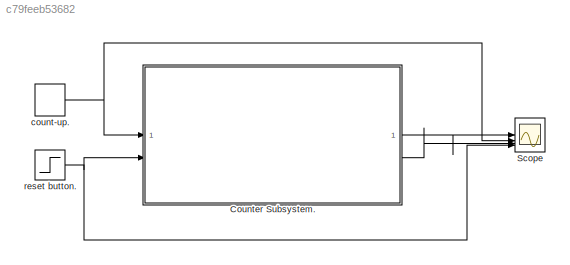
MODEL slx_c79feeb53682
KIND model
CONFIG AbsTol = auto
CONFIG EnableMultiTasking = off
CONFIG FixedStep = 1e-3
CONFIG MaxStep = auto
CONFIG MinStep = auto
CONFIG RelTol = 1e-3
CONFIG SampleTimeConstraint = Unconstrained
CONFIG SolverName = FixedStepAuto
CONFIG StartTime = 0.0
CONFIG StopTime = 40
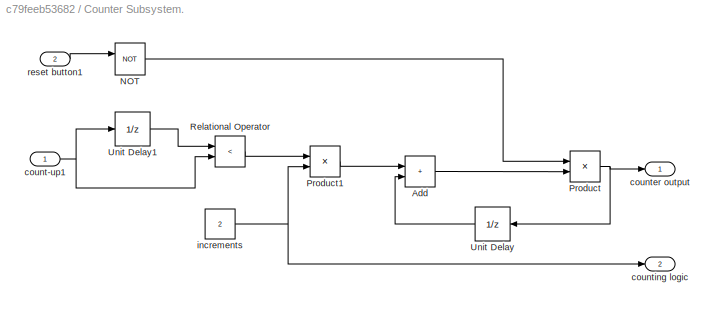
BLOCK [SubSystem] Counter Subsystem.
BLOCK [Sum] Counter Subsystem./Add
  IconShape = rectangular
BLOCK [Logic] Counter Subsystem./NOT
  AllPortsSameDT = off
  Operator = NOT
  OutDataTypeStr = fixdt(1,16)
BLOCK [Product] Counter Subsystem./Product
  OutDataTypeStr = int16
BLOCK [Product] Counter Subsystem./Product1
BLOCK [RelationalOperator] Counter Subsystem./Relational Operator
  InputSameDT = off
  Operator = <
  OutDataTypeStr = boolean
  RndMeth = Simplest
BLOCK [UnitDelay] Counter Subsystem./Unit Delay
  HasFrameUpgradeWarning = on
  SampleTime = -1
BLOCK [UnitDelay] Counter Subsystem./Unit Delay1
  HasFrameUpgradeWarning = on
  SampleTime = -1
BLOCK [Inport] Counter Subsystem./count-up1
BLOCK [Outport] Counter Subsystem./counter output
BLOCK [Outport] Counter Subsystem./counting logic
  Port = 2
BLOCK [Constant] Counter Subsystem./increments
  Value = 2
BLOCK [Inport] Counter Subsystem./reset button1
  Port = 2
BLOCK [Scope] Scope
  Floating = off
  NumInputPorts = 4
  ScopeSpecificationString = Simulink.scopes.TimeScopeBlockCfg('CurrentConfiguration', extmgr.ConfigurationSet(extmgr.Configuration('Core','General UI',true),extmgr.Configuration('Core','Source UI',true),extmgr.Configuration('Sources','WiredSimulink',true),extmgr.Configuration('Visuals','Time Domain',true,'SerializedDisplays',{struct('MinYLimReal','-0.75','MaxYLimReal','6.75','YLabelReal','','MinYLimMag','0.00000','MaxYLimMag...<+3397ch>
BLOCK [DiscretePulseGenerator] count-up.
  Period = 10
  PhaseDelay = 5
  PulseType = Time based
  PulseWidth = 50
BLOCK [Step] reset button.
  SampleTime = 0
  Time = 30
LINE Counter Subsystem./Add:1 -> Counter Subsystem./Product:2
LINE Counter Subsystem./NOT:1 -> Counter Subsystem./Product:1
LINE Counter Subsystem./Product1:1 -> Counter Subsystem./Add:1
NET Counter Subsystem./Product:1 -> Counter Subsystem./Unit Delay:1, Counter Subsystem./counter output:1
LINE Counter Subsystem./Relational Operator:1 -> Counter Subsystem./Product1:1
LINE Counter Subsystem./Unit Delay1:1 -> Counter Subsystem./Relational Operator:1
LINE Counter Subsystem./Unit Delay:1 -> Counter Subsystem./Add:2
NET Counter Subsystem./count-up1:1 -> Counter Subsystem./Relational Operator:2, Counter Subsystem./Unit Delay1:1
NET Counter Subsystem./increments:1 -> Counter Subsystem./Product1:2, Counter Subsystem./counting logic:1
LINE Counter Subsystem./reset button1:1 -> Counter Subsystem./NOT:1
LINE Counter Subsystem.:1 -> Scope:1
LINE Counter Subsystem.:2 -> Scope:3
NET count-up.:1 -> Counter Subsystem.:1, Scope:2
NET reset button.:1 -> Counter Subsystem.:2, Scope:4
note: NET lines group one-source signal fan-out (src -> all destinations, sorted); 1:1 wires keep LINE
